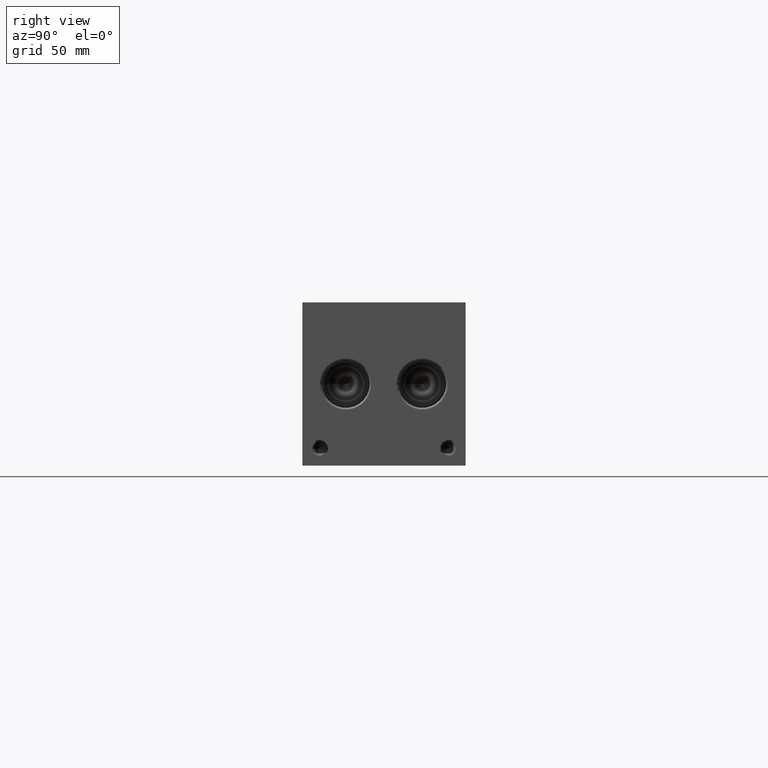
[diagram: clean part render]
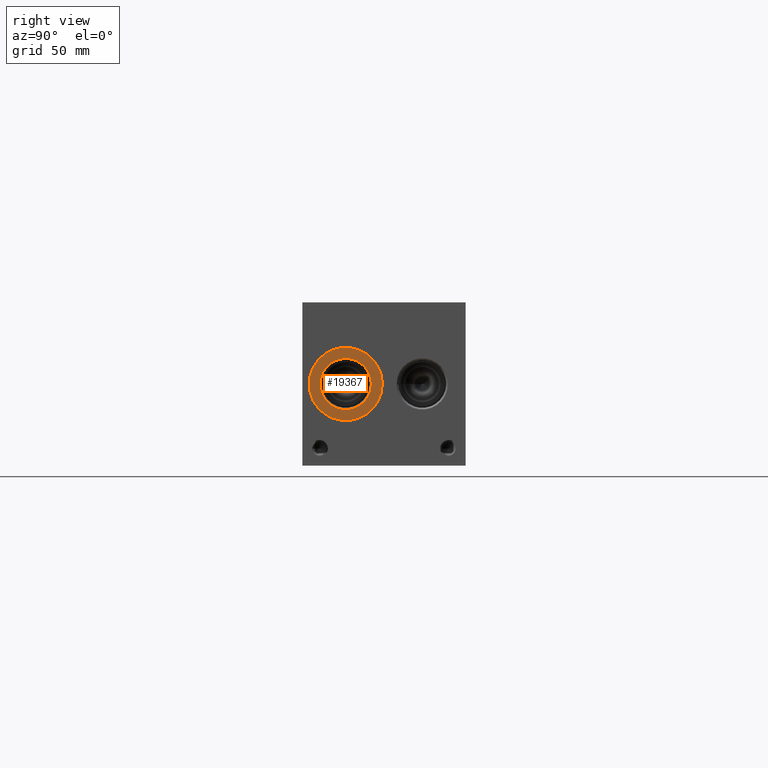
[diagram: same view with one face highlighted and labeled with its STEP entity id]
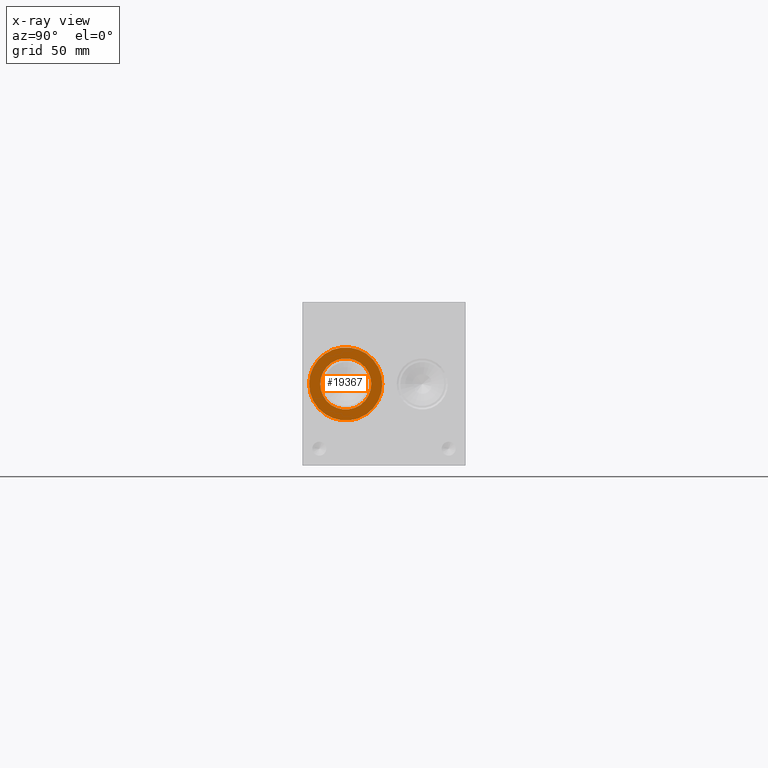
[diagram: x-ray of the same camera — body ghosted, the highlighted face saturated]
A machine part, right view. The second image highlights one B-rep face of the part: STEP entity #19367.
The next image is the same camera in x-ray: the body ghosted, the highlighted face saturated — about 0% of this face is hidden behind the body in this view.
In plain terms, the highlighted planar face has unit normal (1, 0, 0).
Its self-contained STEP definition (entity closure, byte-faithful):
#921=CIRCLE('',#20768,17.0688);
#922=CIRCLE('',#20769,17.0688);
#923=CIRCLE('',#20770,11.9507);
#1102=FACE_BOUND('',#4010,.T.);
#2850=FACE_OUTER_BOUND('',#4009,.T.);
#4009=EDGE_LOOP('',(#17018,#17019));
#4010=EDGE_LOOP('',(#17020));
#9132=VERTEX_POINT('',#33813);
#9133=VERTEX_POINT('',#33814);
#9134=VERTEX_POINT('',#33817);
#11814=EDGE_CURVE('',#9132,#9133,#921,.T.);
#11815=EDGE_CURVE('',#9133,#9132,#922,.T.);
#11816=EDGE_CURVE('',#9134,#9134,#923,.T.);
#17018=ORIENTED_EDGE('',*,*,#11814,.T.);
#17019=ORIENTED_EDGE('',*,*,#11815,.T.);
#17020=ORIENTED_EDGE('',*,*,#11816,.F.);
#17753=PLANE('',#20767);
#19367=ADVANCED_FACE('',(#2850,#1102),#17753,.T.);
#20767=AXIS2_PLACEMENT_3D('',#33812,#25114,#25115);
#20768=AXIS2_PLACEMENT_3D('',#33815,#25116,#25117);
#20769=AXIS2_PLACEMENT_3D('',#33816,#25118,#25119);
#20770=AXIS2_PLACEMENT_3D('',#33818,#25120,#25121);
#25114=DIRECTION('center_axis',(1.,0.,0.));
#25115=DIRECTION('ref_axis',(0.,1.,0.));
#25116=DIRECTION('center_axis',(1.,0.,0.));
#25117=DIRECTION('ref_axis',(0.,1.,0.));
#25118=DIRECTION('center_axis',(1.,0.,0.));
#25119=DIRECTION('ref_axis',(0.,1.,0.));
#25120=DIRECTION('center_axis',(1.,0.,0.));
#25121=DIRECTION('ref_axis',(0.,1.,0.));
#33812=CARTESIAN_POINT('Origin',(323.0626,20.2438,38.1));
#33813=CARTESIAN_POINT('',(323.0626,37.3126,38.1));
#33814=CARTESIAN_POINT('',(323.0626,3.175,38.1));
#33815=CARTESIAN_POINT('Origin',(323.0626,20.2438,38.1));
#33816=CARTESIAN_POINT('Origin',(323.0626,20.2438,38.1));
#33817=CARTESIAN_POINT('',(323.0626,8.2931,38.1));
#33818=CARTESIAN_POINT('Origin',(323.0626,20.2438,38.1));